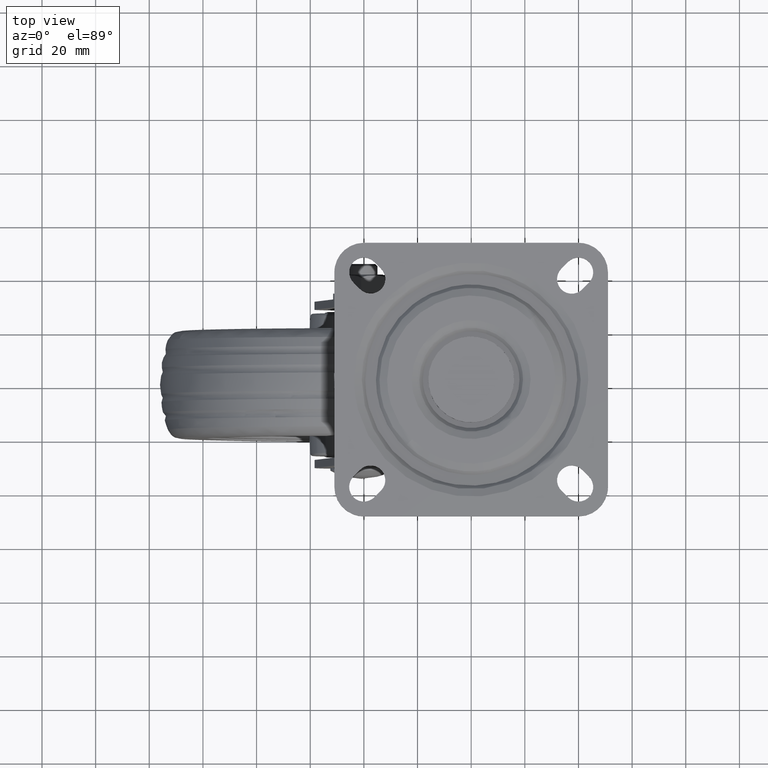
[diagram: clean part render]
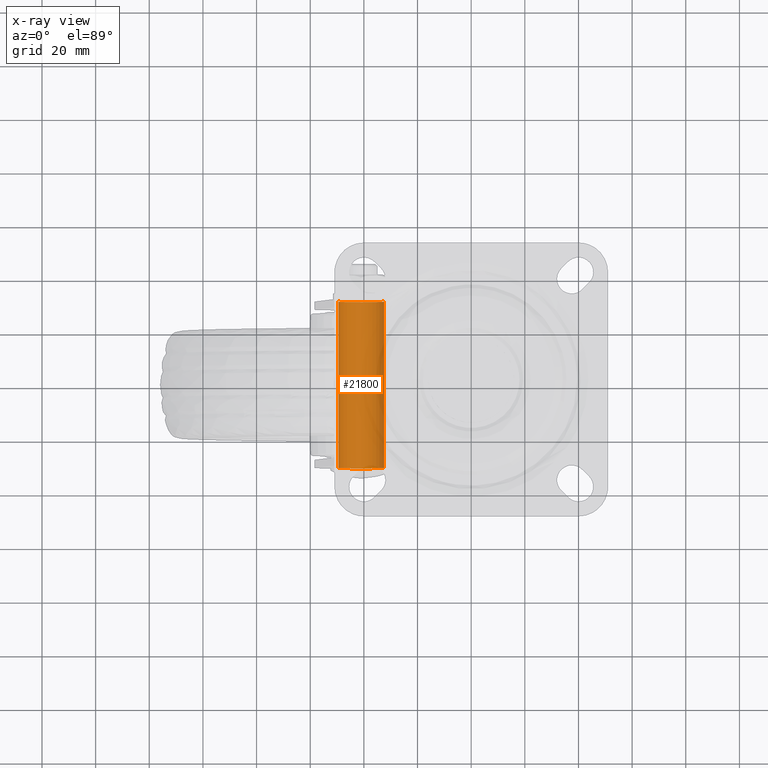
[diagram: x-ray — body ghosted, one internal face saturated and labeled with its STEP entity id]
A machine part, top view, then the same camera in x-ray: the body is ghosted and one INTERNAL B-rep face — a face not visible from any outside direction — is saturated and labeled: STEP entity #21800.
In plain terms, the highlighted face is a freeform B-spline surface patch.
Its self-contained STEP definition (entity closure, byte-faithful):
#21545=CARTESIAN_POINT('',(-41.0,31.001000000000001,-123.499983999999900));
#21546=VERTEX_POINT('',#21545);
#21547=CARTESIAN_POINT('',(-49.484145786552233,31.001000000000008,-115.518896586594710));
#21548=VERTEX_POINT('',#21547);
#21549=CARTESIAN_POINT('',(-41.0,31.001000000000001,-123.499983999999900));
#21550=CARTESIAN_POINT('',(-48.996001568180453,31.000999999999998,-123.499983999999900));
#21551=CARTESIAN_POINT('',(-49.484145786552226,31.000999999999994,-115.518896586594760));
#21559=(BOUNDED_CURVE()B_SPLINE_CURVE(2,(#21549,#21550,#21551),.UNSPECIFIED.,.F.,.U.)B_SPLINE_CURVE_WITH_KNOTS((3,3),(0.500000000000000,0.739332962230814),.UNSPECIFIED.)CURVE()GEOMETRIC_REPRESENTATION_ITEM()RATIONAL_B_SPLINE_CURVE((1.0,0.719603993296234,0.976072041649296))REPRESENTATION_ITEM(''));
#21560=EDGE_CURVE('',#21546,#21548,#21559,.T.);
#21579=CARTESIAN_POINT('',(-32.515854213447767,31.001000000000001,-114.481071413405300));
#21580=VERTEX_POINT('',#21579);
#21594=CARTESIAN_POINT('',(-32.515854213447774,31.001000000000001,-114.481071413405320));
#21595=CARTESIAN_POINT('',(-32.500000000000099,31.000999999999998,-114.740285511686990));
#21596=CARTESIAN_POINT('',(-32.500000000000099,31.001000000000001,-114.999984000000000));
#21597=CARTESIAN_POINT('',(-32.500000000000107,31.001000000000001,-123.499983999999900));
#21598=CARTESIAN_POINT('',(-41.0,31.001000000000001,-123.499983999999900));
#21606=(BOUNDED_CURVE()B_SPLINE_CURVE(2,(#21594,#21595,#21596,#21597,#21598),.UNSPECIFIED.,.F.,.U.)B_SPLINE_CURVE_WITH_KNOTS((3,2,3),(0.239332962230814,0.250000000000000,0.500000000000000),.UNSPECIFIED.)CURVE()GEOMETRIC_REPRESENTATION_ITEM()RATIONAL_B_SPLINE_CURVE((0.976072041649296,0.987502787890314,1.0,0.707106781186548,1.0))REPRESENTATION_ITEM(''));
#21607=EDGE_CURVE('',#21580,#21546,#21606,.T.);
#21734=CARTESIAN_POINT('',(-32.515854213414229,-32.551049999999996,-114.481071413953700));
#21735=CARTESIAN_POINT('',(-31.996941627367956,-32.551050000000004,-122.965217200539480));
#21736=CARTESIAN_POINT('',(-40.481087413953723,-32.551049999999996,-123.484129786585800));
#21737=CARTESIAN_POINT('',(-48.965233200539494,-32.551050000000004,-124.003042372632050));
#21738=CARTESIAN_POINT('',(-49.484145786585771,-32.551049999999996,-115.518896586046300));
#21739=CARTESIAN_POINT('',(-32.515854213414229,32.589801250000008,-114.481071413953700));
#21740=CARTESIAN_POINT('',(-31.996941627367956,32.589801250000008,-122.965217200539480));
#21741=CARTESIAN_POINT('',(-40.481087413953723,32.589801250000008,-123.484129786585800));
#21742=CARTESIAN_POINT('',(-48.965233200539494,32.589801250000008,-124.003042372632050));
#21743=CARTESIAN_POINT('',(-49.484145786585771,32.589801250000008,-115.518896586046300));
#21751=(BOUNDED_SURFACE()B_SPLINE_SURFACE(2,1,((#21734,#21739),(#21735,#21740),(#21736,#21741),(#21737,#21742),(#21738,#21743)),.UNSPECIFIED.,.F.,.F.,.U.)B_SPLINE_SURFACE_WITH_KNOTS((3,2,3),(2,2),(0.0,14.083261120685091,28.166522241370188),(0.0,65.140851250000011),.UNSPECIFIED.)GEOMETRIC_REPRESENTATION_ITEM()RATIONAL_B_SPLINE_SURFACE(((1.0,1.0),(0.707106781186548,0.707106781186548),(1.0,1.0),(0.707106781186548,0.707106781186548),(1.0,1.0)))REPRESENTATION_ITEM('')SURFACE());
#21752=ORIENTED_EDGE('',*,*,#21607,.F.);
#21753=CARTESIAN_POINT('',(-32.515854213447767,-31.001000000000008,-114.481071413405300));
#21754=VERTEX_POINT('',#21753);
#21755=CARTESIAN_POINT('',(-32.515854213447767,-31.001000000000008,-114.481071413405300));
#21756=CARTESIAN_POINT('',(-32.515854213447767,31.001000000000001,-114.481071413405300));
#21757=QUASI_UNIFORM_CURVE('',1,(#21755,#21756),.UNSPECIFIED.,.F.,.U.);
#21758=EDGE_CURVE('',#21754,#21580,#21757,.T.);
#21759=ORIENTED_EDGE('',*,*,#21758,.F.);
#21760=CARTESIAN_POINT('',(-41.0,-31.001000000000001,-123.499983999999900));
#21761=VERTEX_POINT('',#21760);
#21762=CARTESIAN_POINT('',(-32.515854213447774,-31.001000000000008,-114.481071413405230));
#21763=CARTESIAN_POINT('',(-32.500000000000099,-31.001000000000001,-114.740285511687010));
#21764=CARTESIAN_POINT('',(-32.500000000000099,-31.001000000000001,-114.999984000000000));
#21765=CARTESIAN_POINT('',(-32.500000000000107,-31.001000000000001,-123.499983999999900));
#21766=CARTESIAN_POINT('',(-41.0,-31.001000000000001,-123.499983999999900));
#21774=(BOUNDED_CURVE()B_SPLINE_CURVE(2,(#21762,#21763,#21764,#21765,#21766),.UNSPECIFIED.,.F.,.U.)B_SPLINE_CURVE_WITH_KNOTS((3,2,3),(0.239332962230814,0.250000000000000,0.500000000000000),.UNSPECIFIED.)CURVE()GEOMETRIC_REPRESENTATION_ITEM()RATIONAL_B_SPLINE_CURVE((0.976072041649296,0.987502787890314,1.0,0.707106781186548,1.0))REPRESENTATION_ITEM(''));
#21775=EDGE_CURVE('',#21754,#21761,#21774,.T.);
#21776=ORIENTED_EDGE('',*,*,#21775,.T.);
#21777=CARTESIAN_POINT('',(-49.484145786552233,-31.001000000000008,-115.518896586594710));
#21778=VERTEX_POINT('',#21777);
#21779=CARTESIAN_POINT('',(-41.0,-31.001000000000001,-123.499983999999900));
#21780=CARTESIAN_POINT('',(-48.996001568180453,-31.000999999999998,-123.499983999999900));
#21781=CARTESIAN_POINT('',(-49.484145786552226,-31.000999999999994,-115.518896586594760));
#21789=(BOUNDED_CURVE()B_SPLINE_CURVE(2,(#21779,#21780,#21781),.UNSPECIFIED.,.F.,.U.)B_SPLINE_CURVE_WITH_KNOTS((3,3),(0.500000000000000,0.739332962230814),.UNSPECIFIED.)CURVE()GEOMETRIC_REPRESENTATION_ITEM()RATIONAL_B_SPLINE_CURVE((1.0,0.719603993296234,0.976072041649296))REPRESENTATION_ITEM(''));
#21790=EDGE_CURVE('',#21761,#21778,#21789,.T.);
#21791=ORIENTED_EDGE('',*,*,#21790,.T.);
#21792=CARTESIAN_POINT('',(-49.484145786552233,-31.001000000000008,-115.518896586594710));
#21793=CARTESIAN_POINT('',(-49.484145786552233,31.001000000000008,-115.518896586594710));
#21794=QUASI_UNIFORM_CURVE('',1,(#21792,#21793),.UNSPECIFIED.,.F.,.U.);
#21795=EDGE_CURVE('',#21778,#21548,#21794,.T.);
#21796=ORIENTED_EDGE('',*,*,#21795,.T.);
#21797=ORIENTED_EDGE('',*,*,#21560,.F.);
#21798=EDGE_LOOP('',(#21752,#21759,#21776,#21791,#21796,#21797));
#21799=FACE_OUTER_BOUND('',#21798,.T.);
#21800=ADVANCED_FACE('',(#21799),#21751,.T.);